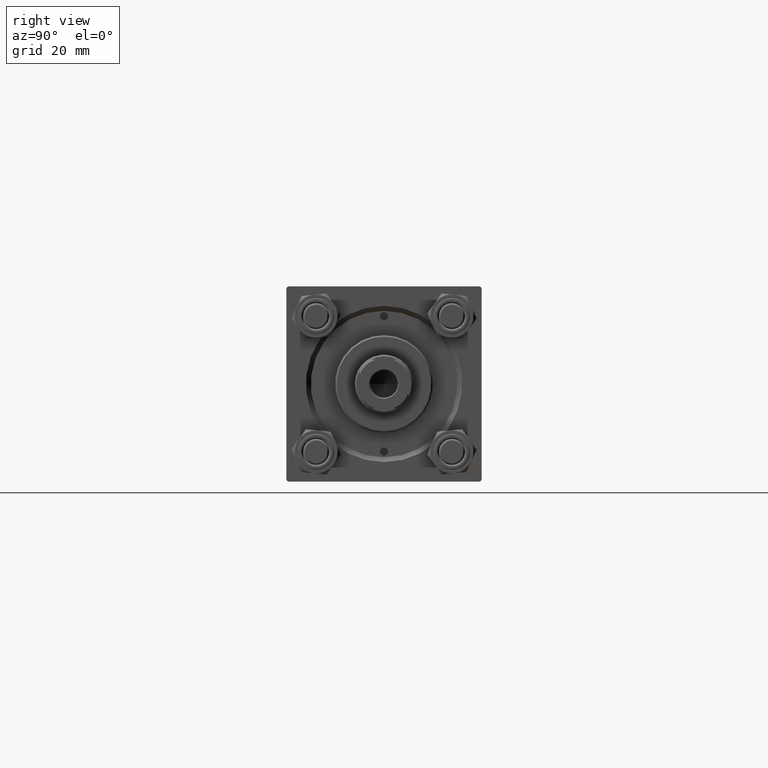
[diagram: clean part render]
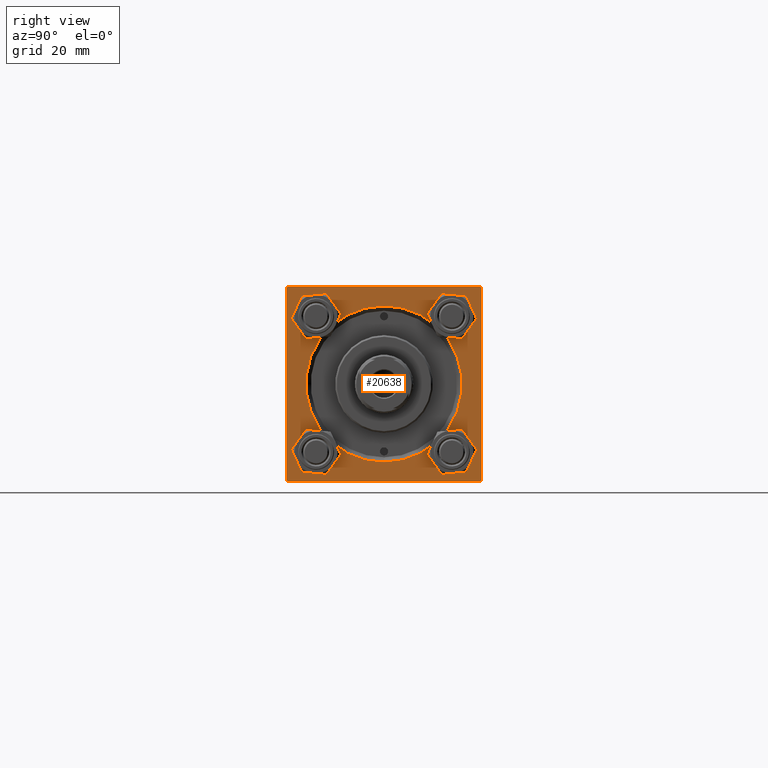
[diagram: same view with one face highlighted and labeled with its STEP entity id]
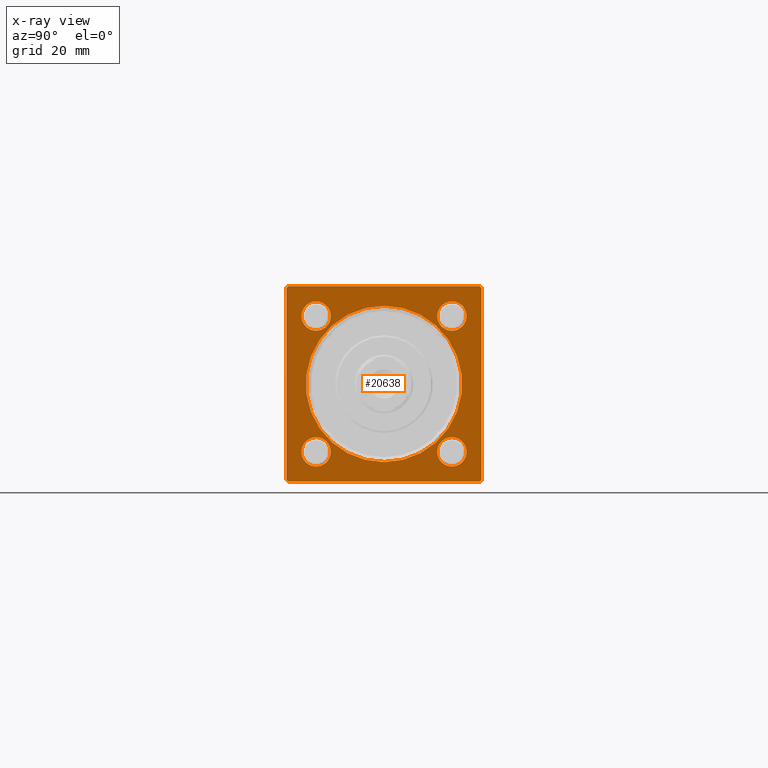
[diagram: x-ray of the same camera — body ghosted, the highlighted face saturated]
A machine part, right view. The second image highlights one B-rep face of the part: STEP entity #20638.
The next image is the same camera in x-ray: the body ghosted, the highlighted face saturated — about 0% of this face is hidden behind the body in this view.
In plain terms, the highlighted planar face has unit normal (-1, 0, 0).
Its self-contained STEP definition (entity closure, byte-faithful):
#83 = EDGE_CURVE ( 'NONE', #46328, #26474, #23329, .T. ) ;
#165 = VERTEX_POINT ( 'NONE', #34631 ) ;
#1155 = ORIENTED_EDGE ( 'NONE', *, *, #44368, .T. ) ;
#1739 = CARTESIAN_POINT ( 'NONE',  ( 148.0000000000000000, -29.50000000000000000, -30.00000000000000000 ) ) ;
#2504 = AXIS2_PLACEMENT_3D ( 'NONE', #22559, #17326, #48203 ) ;
#2742 = DIRECTION ( 'NONE',  ( 0.000000000000000000, 0.000000000000000000, 1.000000000000000000 ) ) ;
#3128 = EDGE_CURVE ( 'NONE', #13611, #30406, #10496, .T. ) ;
#3368 = DIRECTION ( 'NONE',  ( -1.000000000000000000, 0.000000000000000000, -0.000000000000000000 ) ) ;
#3438 = DIRECTION ( 'NONE',  ( 0.000000000000000000, 0.000000000000000000, 1.000000000000000000 ) ) ;
#3715 = CARTESIAN_POINT ( 'NONE',  ( 148.0000000000000000, 0.000000000000000000, 0.000000000000000000 ) ) ;
#4426 = CARTESIAN_POINT ( 'NONE',  ( 148.0000000000000000, 30.00000000000000000, 30.00000000000000000 ) ) ;
#4451 = EDGE_CURVE ( 'NONE', #25068, #28471, #24280, .T. ) ;
#4700 = VERTEX_POINT ( 'NONE', #18481 ) ;
#4992 = VECTOR ( 'NONE', #35279, 1000.000000000000000 ) ;
#5572 = AXIS2_PLACEMENT_3D ( 'NONE', #41746, #14161, #41251 ) ;
#5785 = CARTESIAN_POINT ( 'NONE',  ( 148.0000000000000000, 30.00000000000000000, -29.99999999999999289 ) ) ;
#6081 = DIRECTION ( 'NONE',  ( -1.000000000000000000, 0.000000000000000000, -0.000000000000000000 ) ) ;
#6138 = ORIENTED_EDGE ( 'NONE', *, *, #10369, .T. ) ;
#6144 = DIRECTION ( 'NONE',  ( -0.000000000000000000, 0.7071067811865474617, 0.7071067811865474617 ) ) ;
#6566 = ORIENTED_EDGE ( 'NONE', *, *, #20961, .F. ) ;
#7481 = DIRECTION ( 'NONE',  ( -1.000000000000000000, 0.000000000000000000, -0.000000000000000000 ) ) ;
#7739 = VECTOR ( 'NONE', #21209, 1000.000000000000000 ) ;
#8262 = CIRCLE ( 'NONE', #22827, 4.500000000000017764 ) ;
#8484 = EDGE_CURVE ( 'NONE', #27172, #36302, #15420, .T. ) ;
#8705 = CARTESIAN_POINT ( 'NONE',  ( 148.0000000000000000, -30.00000000000000000, -29.49999999999998579 ) ) ;
#9043 = VECTOR ( 'NONE', #9491, 1000.000000000000000 ) ;
#9327 = DIRECTION ( 'NONE',  ( -1.000000000000000000, 0.000000000000000000, -0.000000000000000000 ) ) ;
#9491 = DIRECTION ( 'NONE',  ( 0.000000000000000000, 0.000000000000000000, -1.000000000000000000 ) ) ;
#9501 = AXIS2_PLACEMENT_3D ( 'NONE', #3715, #47728, #13296 ) ;
#9529 = CARTESIAN_POINT ( 'NONE',  ( 148.0000000000000000, 20.84999999999999787, -25.35000000000001918 ) ) ;
#9541 = CIRCLE ( 'NONE', #9501, 24.00000000000003908 ) ;
#10358 = FACE_OUTER_BOUND ( 'NONE', #49135, .T. ) ;
#10369 = EDGE_CURVE ( 'NONE', #165, #4700, #35032, .T. ) ;
#10381 = LINE ( 'NONE', #33415, #30457 ) ;
#10496 = CIRCLE ( 'NONE', #25867, 4.500000000000017764 ) ;
#11442 = DIRECTION ( 'NONE',  ( 0.000000000000000000, 0.000000000000000000, 1.000000000000000000 ) ) ;
#11546 = DIRECTION ( 'NONE',  ( 0.000000000000000000, -0.7071067811865474617, 0.7071067811865474617 ) ) ;
#11718 = CARTESIAN_POINT ( 'NONE',  ( 148.0000000000000000, -20.84999999999999076, -25.35000000000002274 ) ) ;
#12272 = VERTEX_POINT ( 'NONE', #40712 ) ;
#12474 = EDGE_CURVE ( 'NONE', #30406, #13611, #8262, .T. ) ;
#13107 = CARTESIAN_POINT ( 'NONE',  ( 148.0000000000000000, -20.84999999999999076, 16.34999999999998721 ) ) ;
#13201 = AXIS2_PLACEMENT_3D ( 'NONE', #42933, #23694, #39144 ) ;
#13296 = DIRECTION ( 'NONE',  ( 0.000000000000000000, 0.000000000000000000, 1.000000000000000000 ) ) ;
#13406 = FACE_BOUND ( 'NONE', #17677, .T. ) ;
#13611 = VERTEX_POINT ( 'NONE', #36355 ) ;
#13694 = ORIENTED_EDGE ( 'NONE', *, *, #49100, .T. ) ;
#13886 = CARTESIAN_POINT ( 'NONE',  ( 148.0000000000000000, 30.00000000000000000, 29.50000000000000000 ) ) ;
#13915 = FACE_BOUND ( 'NONE', #34687, .T. ) ;
#14161 = DIRECTION ( 'NONE',  ( -1.000000000000000000, 0.000000000000000000, -0.000000000000000000 ) ) ;
#14270 = LINE ( 'NONE', #21866, #9043 ) ;
#14529 = CIRCLE ( 'NONE', #29887, 4.500000000000017764 ) ;
#14531 = EDGE_CURVE ( 'NONE', #26474, #46328, #44725, .T. ) ;
#14708 = VECTOR ( 'NONE', #11546, 1000.000000000000114 ) ;
#14857 = VERTEX_POINT ( 'NONE', #17723 ) ;
#15267 = AXIS2_PLACEMENT_3D ( 'NONE', #37276, #3368, #34223 ) ;
#15347 = LINE ( 'NONE', #46719, #14708 ) ;
#15420 = CIRCLE ( 'NONE', #2504, 24.00000000000003908 ) ;
#16200 = CIRCLE ( 'NONE', #26699, 4.500000000000017764 ) ;
#17100 = LINE ( 'NONE', #36828, #49680 ) ;
#17326 = DIRECTION ( 'NONE',  ( -1.000000000000000000, 0.000000000000000000, -0.000000000000000000 ) ) ;
#17657 = DIRECTION ( 'NONE',  ( 0.000000000000000000, 0.000000000000000000, 1.000000000000000000 ) ) ;
#17677 = EDGE_LOOP ( 'NONE', ( #24243, #27214 ) ) ;
#17723 = CARTESIAN_POINT ( 'NONE',  ( 148.0000000000000000, -20.84999999999999076, 25.35000000000002274 ) ) ;
#18116 = CARTESIAN_POINT ( 'NONE',  ( 148.0000000000000000, -20.84999999999999076, 20.85000000000000497 ) ) ;
#18481 = CARTESIAN_POINT ( 'NONE',  ( 148.0000000000000000, -29.50000000000000000, 29.99999999999999289 ) ) ;
#18766 = ORIENTED_EDGE ( 'NONE', *, *, #39829, .T. ) ;
#18958 = VERTEX_POINT ( 'NONE', #21694 ) ;
#19210 = EDGE_CURVE ( 'NONE', #29294, #18958, #17100, .T. ) ;
#19584 = ORIENTED_EDGE ( 'NONE', *, *, #30930, .T. ) ;
#19675 = EDGE_CURVE ( 'NONE', #12272, #18958, #29178, .T. ) ;
#19813 = CARTESIAN_POINT ( 'NONE',  ( 148.0000000000000000, 20.84999999999999787, -16.34999999999998366 ) ) ;
#19817 = ORIENTED_EDGE ( 'NONE', *, *, #28133, .T. ) ;
#19833 = VECTOR ( 'NONE', #6144, 1000.000000000000114 ) ;
#20562 = ORIENTED_EDGE ( 'NONE', *, *, #19210, .F. ) ;
#20638 = ADVANCED_FACE ( 'NONE', ( #40750, #13915, #13406, #29360, #21752, #10358 ), #44794, .F. ) ;
#20961 = EDGE_CURVE ( 'NONE', #12272, #44117, #25490, .T. ) ;
#21209 = DIRECTION ( 'NONE',  ( 0.000000000000000000, -1.000000000000000000, -1.156482317317871478E-16 ) ) ;
#21651 = CARTESIAN_POINT ( 'NONE',  ( 148.0000000000000000, 0.000000000000000000, -24.00000000000003908 ) ) ;
#21694 = CARTESIAN_POINT ( 'NONE',  ( 148.0000000000000000, 30.00000000000000000, -29.49999999999997868 ) ) ;
#21752 = FACE_BOUND ( 'NONE', #39559, .T. ) ;
#21853 = ORIENTED_EDGE ( 'NONE', *, *, #4451, .T. ) ;
#21866 = CARTESIAN_POINT ( 'NONE',  ( 148.0000000000000000, -30.00000000000000000, 29.99999999999999289 ) ) ;
#21961 = CARTESIAN_POINT ( 'NONE',  ( 148.0000000000000000, 20.84999999999999787, 20.85000000000000142 ) ) ;
#22027 = DIRECTION ( 'NONE',  ( -0.000000000000000000, -0.7071067811865474617, -0.7071067811865474617 ) ) ;
#22559 = CARTESIAN_POINT ( 'NONE',  ( 148.0000000000000000, 0.000000000000000000, 0.000000000000000000 ) ) ;
#22827 = AXIS2_PLACEMENT_3D ( 'NONE', #21961, #37400, #2742 ) ;
#23329 = CIRCLE ( 'NONE', #5572, 4.500000000000017764 ) ;
#23694 = DIRECTION ( 'NONE',  ( -1.000000000000000000, 0.000000000000000000, -0.000000000000000000 ) ) ;
#24243 = ORIENTED_EDGE ( 'NONE', *, *, #12474, .T. ) ;
#24280 = CIRCLE ( 'NONE', #15267, 4.500000000000017764 ) ;
#25068 = VERTEX_POINT ( 'NONE', #19813 ) ;
#25359 = ORIENTED_EDGE ( 'NONE', *, *, #83, .T. ) ;
#25490 = LINE ( 'NONE', #5785, #7739 ) ;
#25867 = AXIS2_PLACEMENT_3D ( 'NONE', #33252, #37059, #44156 ) ;
#26474 = VERTEX_POINT ( 'NONE', #39540 ) ;
#26699 = AXIS2_PLACEMENT_3D ( 'NONE', #18116, #7481, #3438 ) ;
#27172 = VERTEX_POINT ( 'NONE', #36621 ) ;
#27214 = ORIENTED_EDGE ( 'NONE', *, *, #3128, .T. ) ;
#27640 = CARTESIAN_POINT ( 'NONE',  ( 148.0000000000000000, 20.84999999999999787, -20.85000000000000142 ) ) ;
#28133 = EDGE_CURVE ( 'NONE', #4700, #36252, #10381, .T. ) ;
#28471 = VERTEX_POINT ( 'NONE', #9529 ) ;
#28977 = VERTEX_POINT ( 'NONE', #8705 ) ;
#29178 = LINE ( 'NONE', #40816, #19833 ) ;
#29294 = VERTEX_POINT ( 'NONE', #13886 ) ;
#29360 = FACE_BOUND ( 'NONE', #48342, .T. ) ;
#29887 = AXIS2_PLACEMENT_3D ( 'NONE', #27640, #42825, #11442 ) ;
#30018 = CARTESIAN_POINT ( 'NONE',  ( 148.0000000000000000, 20.84999999999999787, 16.34999999999998366 ) ) ;
#30406 = VERTEX_POINT ( 'NONE', #30018 ) ;
#30457 = VECTOR ( 'NONE', #22027, 1000.000000000000114 ) ;
#30930 = EDGE_CURVE ( 'NONE', #44121, #14857, #48351, .T. ) ;
#31808 = DIRECTION ( 'NONE',  ( 0.000000000000000000, 0.7071067811865474617, -0.7071067811865474617 ) ) ;
#31946 = AXIS2_PLACEMENT_3D ( 'NONE', #48088, #6081, #33393 ) ;
#33252 = CARTESIAN_POINT ( 'NONE',  ( 148.0000000000000000, 20.84999999999999787, 20.85000000000000142 ) ) ;
#33393 = DIRECTION ( 'NONE',  ( -0.000000000000000000, 0.000000000000000000, 1.000000000000000000 ) ) ;
#33415 = CARTESIAN_POINT ( 'NONE',  ( 148.0000000000000000, -30.00000000000000000, 29.49999999999999289 ) ) ;
#34223 = DIRECTION ( 'NONE',  ( 0.000000000000000000, 0.000000000000000000, 1.000000000000000000 ) ) ;
#34631 = CARTESIAN_POINT ( 'NONE',  ( 148.0000000000000000, 29.50000000000000000, 30.00000000000000000 ) ) ;
#34657 = LINE ( 'NONE', #46312, #42819 ) ;
#34687 = EDGE_LOOP ( 'NONE', ( #49868, #21853 ) ) ;
#34926 = EDGE_CURVE ( 'NONE', #28471, #25068, #14529, .T. ) ;
#35032 = LINE ( 'NONE', #4426, #4992 ) ;
#35222 = EDGE_CURVE ( 'NONE', #28977, #44117, #34657, .T. ) ;
#35279 = DIRECTION ( 'NONE',  ( 0.000000000000000000, -1.000000000000000000, -1.156482317317871478E-16 ) ) ;
#35950 = ORIENTED_EDGE ( 'NONE', *, *, #14531, .T. ) ;
#36252 = VERTEX_POINT ( 'NONE', #40657 ) ;
#36302 = VERTEX_POINT ( 'NONE', #21651 ) ;
#36355 = CARTESIAN_POINT ( 'NONE',  ( 148.0000000000000000, 20.84999999999999787, 25.35000000000001918 ) ) ;
#36621 = CARTESIAN_POINT ( 'NONE',  ( 148.0000000000000000, 2.939152317953652628E-15, 24.00000000000003908 ) ) ;
#36659 = CARTESIAN_POINT ( 'NONE',  ( 148.0000000000000000, -20.84999999999999076, 20.85000000000000497 ) ) ;
#36828 = CARTESIAN_POINT ( 'NONE',  ( 148.0000000000000000, 30.00000000000000000, 30.00000000000000000 ) ) ;
#36913 = EDGE_CURVE ( 'NONE', #14857, #44121, #16200, .T. ) ;
#37059 = DIRECTION ( 'NONE',  ( -1.000000000000000000, 0.000000000000000000, -0.000000000000000000 ) ) ;
#37276 = CARTESIAN_POINT ( 'NONE',  ( 148.0000000000000000, 20.84999999999999787, -20.85000000000000142 ) ) ;
#37400 = DIRECTION ( 'NONE',  ( -1.000000000000000000, 0.000000000000000000, -0.000000000000000000 ) ) ;
#39073 = ORIENTED_EDGE ( 'NONE', *, *, #35222, .T. ) ;
#39144 = DIRECTION ( 'NONE',  ( 0.000000000000000000, 0.000000000000000000, 1.000000000000000000 ) ) ;
#39540 = CARTESIAN_POINT ( 'NONE',  ( 148.0000000000000000, -20.84999999999999076, -16.34999999999998721 ) ) ;
#39559 = EDGE_LOOP ( 'NONE', ( #13694, #43925 ) ) ;
#39639 = DIRECTION ( 'NONE',  ( 0.000000000000000000, 0.000000000000000000, -1.000000000000000000 ) ) ;
#39829 = EDGE_CURVE ( 'NONE', #36252, #28977, #14270, .T. ) ;
#40458 = EDGE_LOOP ( 'NONE', ( #25359, #35950 ) ) ;
#40657 = CARTESIAN_POINT ( 'NONE',  ( 148.0000000000000000, -30.00000000000000000, 29.49999999999999289 ) ) ;
#40712 = CARTESIAN_POINT ( 'NONE',  ( 148.0000000000000000, 29.50000000000000000, -29.99999999999999289 ) ) ;
#40750 = FACE_BOUND ( 'NONE', #40458, .T. ) ;
#40816 = CARTESIAN_POINT ( 'NONE',  ( 148.0000000000000000, 30.00000000000000000, -29.49999999999999289 ) ) ;
#41251 = DIRECTION ( 'NONE',  ( 0.000000000000000000, 0.000000000000000000, 1.000000000000000000 ) ) ;
#41746 = CARTESIAN_POINT ( 'NONE',  ( 148.0000000000000000, -20.84999999999999076, -20.85000000000000497 ) ) ;
#42819 = VECTOR ( 'NONE', #31808, 1000.000000000000114 ) ;
#42825 = DIRECTION ( 'NONE',  ( -1.000000000000000000, 0.000000000000000000, -0.000000000000000000 ) ) ;
#42933 = CARTESIAN_POINT ( 'NONE',  ( 148.0000000000000000, -20.84999999999999076, -20.85000000000000497 ) ) ;
#43925 = ORIENTED_EDGE ( 'NONE', *, *, #8484, .T. ) ;
#44117 = VERTEX_POINT ( 'NONE', #1739 ) ;
#44121 = VERTEX_POINT ( 'NONE', #13107 ) ;
#44156 = DIRECTION ( 'NONE',  ( 0.000000000000000000, 0.000000000000000000, 1.000000000000000000 ) ) ;
#44368 = EDGE_CURVE ( 'NONE', #29294, #165, #15347, .T. ) ;
#44725 = CIRCLE ( 'NONE', #13201, 4.500000000000017764 ) ;
#44794 = PLANE ( 'NONE',  #31946 ) ;
#46312 = CARTESIAN_POINT ( 'NONE',  ( 148.0000000000000000, -29.50000000000000000, -30.00000000000000000 ) ) ;
#46328 = VERTEX_POINT ( 'NONE', #11718 ) ;
#46719 = CARTESIAN_POINT ( 'NONE',  ( 148.0000000000000000, 29.50000000000000000, 30.00000000000000000 ) ) ;
#47038 = ORIENTED_EDGE ( 'NONE', *, *, #36913, .T. ) ;
#47520 = AXIS2_PLACEMENT_3D ( 'NONE', #36659, #9327, #17657 ) ;
#47728 = DIRECTION ( 'NONE',  ( -1.000000000000000000, 0.000000000000000000, -0.000000000000000000 ) ) ;
#48088 = CARTESIAN_POINT ( 'NONE',  ( 148.0000000000000000, 0.000000000000000000, 0.000000000000000000 ) ) ;
#48203 = DIRECTION ( 'NONE',  ( 0.000000000000000000, 0.000000000000000000, 1.000000000000000000 ) ) ;
#48342 = EDGE_LOOP ( 'NONE', ( #19584, #47038 ) ) ;
#48351 = CIRCLE ( 'NONE', #47520, 4.500000000000017764 ) ;
#48692 = ORIENTED_EDGE ( 'NONE', *, *, #19675, .T. ) ;
#49100 = EDGE_CURVE ( 'NONE', #36302, #27172, #9541, .T. ) ;
#49135 = EDGE_LOOP ( 'NONE', ( #18766, #39073, #6566, #48692, #20562, #1155, #6138, #19817 ) ) ;
#49680 = VECTOR ( 'NONE', #39639, 1000.000000000000000 ) ;
#49868 = ORIENTED_EDGE ( 'NONE', *, *, #34926, .T. ) ;